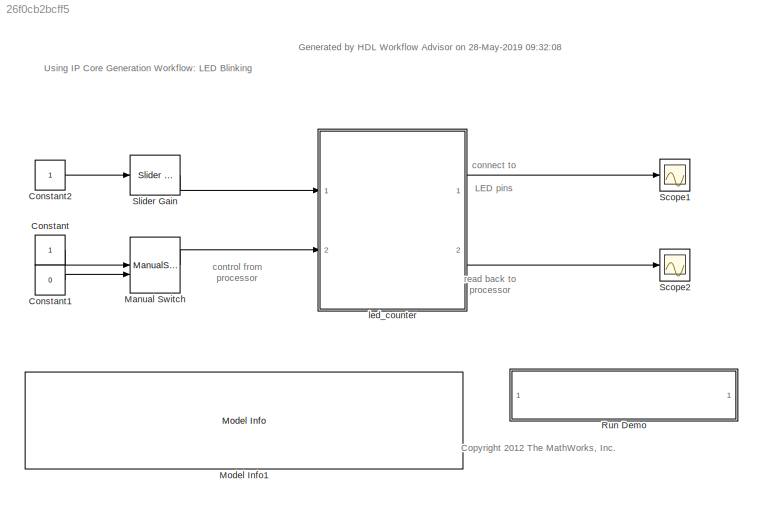
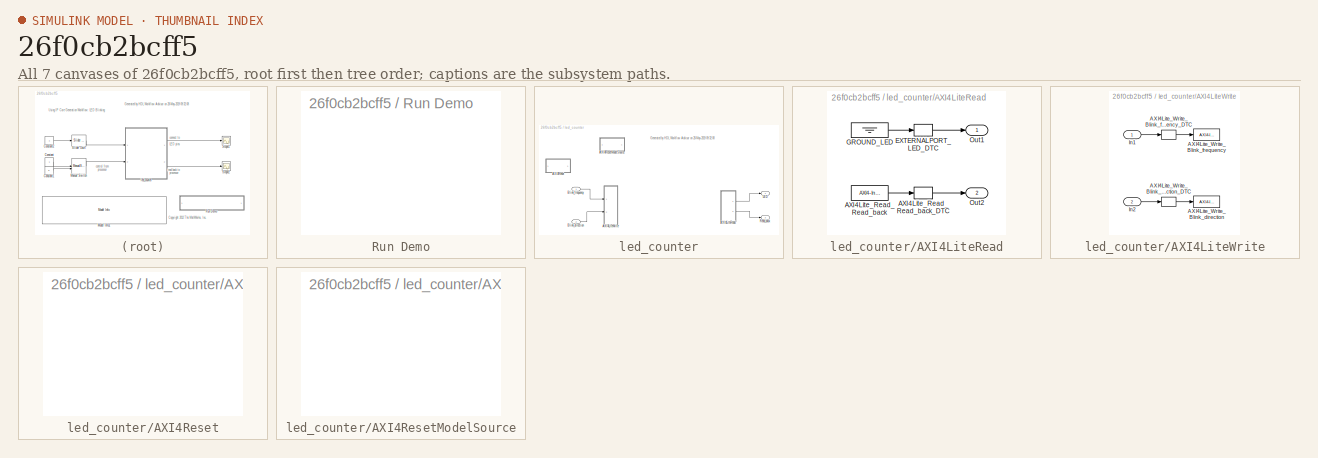
[diagram: thumbnail index - all 7 canvases of the model, root first then tree order]
MODEL slx_26f0cb2bcff5
KIND model
CONFIG AbsTol = auto
CONFIG EnableMultiTasking = off
CONFIG FixedStep = auto
CONFIG InitFcn = Ts = 1e-3;
CONFIG MaxStep = auto
CONFIG MinStep = auto
CONFIG RelTol = 1e-3
CONFIG SampleTimeConstraint = Unconstrained
CONFIG Solver = VariableStepAuto
CONFIG SolverName = VariableStepAuto
CONFIG StartTime = 0.0
CONFIG StopTime = 10.0
BLOCK [Constant] Constant
  OutDataTypeStr = boolean
  SampleTime = Ts
BLOCK [Constant] Constant1
  OutDataTypeStr = boolean
  SampleTime = Ts
  Value = 0
BLOCK [Constant] Constant2
  OutDataTypeStr = fixdt(0, 4, 0)
  SampleTime = Ts
BLOCK [ManualSwitch] Manual Switch
BLOCK [Reference] Model Info1  REF=simulink/Model-Wide
Utilities/Model Info
  Ports = []
  SourceBlock = simulink/Model-Wide\nUtilities/Model Info
  SourceProductBaseCode = SL
  SourceProductName = Simulink
  SourceType = CMBlock
BLOCK [SubSystem] Run Demo
  OpenFcn = hdladvisor([bdroot, '/led_counter'])
  Ports = []
  RequestExecContextInheritance = off
BLOCK [Scope] Scope1
  Floating = off
  NumInputPorts = 1
  Ports = [1]
  ScopeSpecificationString = C++SS(StrPVP('Location','[612, 509, 934, 748]'),StrPVP('Open','off'),MxPVP('AxesTitles',53,'struct(''axes1'',''%<SignalLabel>'')'),MxPVP('ScopeGraphics',56,'struct(''FigureColor'',''[0.5 0.5 0.5]'',''AxesColor'',''[0 0 0]'',''AxesTickColor'',''[1 1 1]'',''LineColors'',''[1 1 0;1 0 1;0 1 1;1 0 0;0 1 0;0 0 1]'',''LineStyles'',''-|-|-|-|-|-'',''LineWidths'',''[0.5 0.5 0.5 0.5 0.5 0.5]'',''MarkerStyle...<+272ch>
BLOCK [Scope] Scope2
  Floating = off
  NumInputPorts = 1
  Ports = [1]
  ScopeSpecificationString = C++SS(StrPVP('Location','[188, 390, 512, 629]'),StrPVP('Open','off'),MxPVP('AxesTitles',53,'struct(''axes1'',''%<SignalLabel>'')'),MxPVP('ScopeGraphics',56,'struct(''FigureColor'',''[0.5 0.5 0.5]'',''AxesColor'',''[0 0 0]'',''AxesTickColor'',''[1 1 1]'',''LineColors'',''[1 1 0;1 0 1;0 1 1;1 0 0;0 1 0;0 0 1]'',''LineStyles'',''-|-|-|-|-|-'',''LineWidths'',''[0.5 0.5 0.5 0.5 0.5 0.5]'',''MarkerStyle...<+240ch>
BLOCK [Reference] Slider Gain  REF=simulink/Math
Operations/Slider
Gain
  Ports = [1, 1]
  SourceBlock = simulink/Math\nOperations/Slider\nGain
  SourceProductBaseCode = SL
  SourceProductName = Simulink
  SourceType = Slider Gain
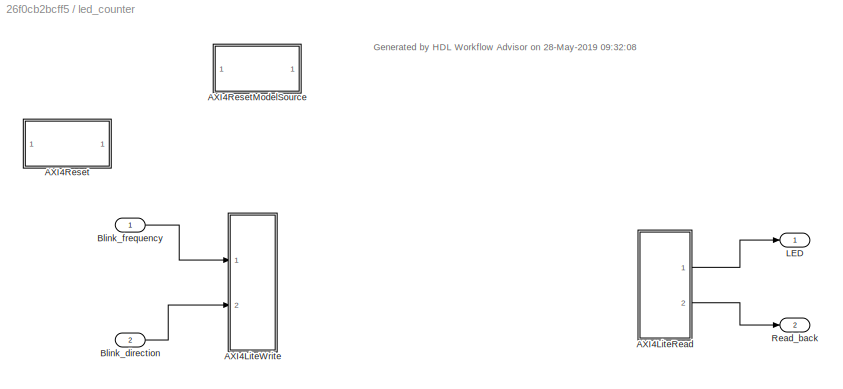
BLOCK [SubSystem] led_counter
  Ports = [2, 2]
  RequestExecContextInheritance = off
  TreatAsAtomicUnit = on
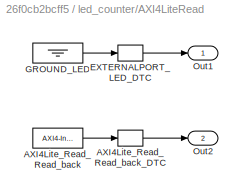
BLOCK [SubSystem] led_counter/AXI4LiteRead
  Ports = [0, 2]
  Priority = 10
  RequestExecContextInheritance = off
BLOCK [Reference] led_counter/AXI4LiteRead/AXI4Lite_Read_Read_back  REF=axiinterfacelib/AXI4-Interface Read
  Ports = [0, 1]
  Priority = 3
  SourceBlock = axiinterfacelib/AXI4-Interface Read
  SourceProductBaseCode = ECZYNQ7000
  SourceProductName = Embedded Coder Support Package for Xilinx Zynq Platform
  SourceType = AXI4-Interface Read
BLOCK [DataTypeConversion] led_counter/AXI4LiteRead/AXI4Lite_Read_Read_back_DTC
  ConvertRealWorld = Stored Integer (SI)
  OutDataTypeStr = fixdt('uint8')
  RndMeth = Floor
  SaturateOnIntegerOverflow = off
BLOCK [DataTypeConversion] led_counter/AXI4LiteRead/EXTERNALPORT_LED_DTC
  OutDataTypeStr = fixdt('uint8')
  RndMeth = Floor
  SaturateOnIntegerOverflow = off
BLOCK [Ground] led_counter/AXI4LiteRead/GROUND_LED
BLOCK [Outport] led_counter/AXI4LiteRead/Out1
  IconDisplay = Port number
BLOCK [Outport] led_counter/AXI4LiteRead/Out2
  IconDisplay = Port number
  Port = 2
BLOCK [SubSystem] led_counter/AXI4LiteWrite
  Ports = [2]
  Priority = 1
  RequestExecContextInheritance = off
BLOCK [Reference] led_counter/AXI4LiteWrite/AXI4Lite_Write_Blink_direction  REF=axiinterfacelib/AXI4-Interface Write
  Ports = [1]
  Priority = 2
  SourceBlock = axiinterfacelib/AXI4-Interface Write
  SourceProductBaseCode = ECZYNQ7000
  SourceProductName = Embedded Coder Support Package for Xilinx Zynq Platform
  SourceType = AXI4-Interface Write
BLOCK [DataTypeConversion] led_counter/AXI4LiteWrite/AXI4Lite_Write_Blink_direction_DTC
  ConvertRealWorld = Stored Integer (SI)
  OutDataTypeStr = uint32
  RndMeth = Floor
  SaturateOnIntegerOverflow = off
BLOCK [Reference] led_counter/AXI4LiteWrite/AXI4Lite_Write_Blink_frequency  REF=axiinterfacelib/AXI4-Interface Write
  Ports = [1]
  Priority = 1
  SourceBlock = axiinterfacelib/AXI4-Interface Write
  SourceProductBaseCode = ECZYNQ7000
  SourceProductName = Embedded Coder Support Package for Xilinx Zynq Platform
  SourceType = AXI4-Interface Write
BLOCK [DataTypeConversion] led_counter/AXI4LiteWrite/AXI4Lite_Write_Blink_frequency_DTC
  ConvertRealWorld = Stored Integer (SI)
  OutDataTypeStr = uint32
  RndMeth = Floor
  SaturateOnIntegerOverflow = off
BLOCK [Inport] led_counter/AXI4LiteWrite/In1
  IconDisplay = Port number
BLOCK [Inport] led_counter/AXI4LiteWrite/In2
  IconDisplay = Port number
  Port = 2
BLOCK [SubSystem] led_counter/AXI4Reset
  CopyFcn = cccopyfcn(gcb)
  OpenFcn = ccopenfcn('System Start Function')
  Ports = []
  RequestExecContextInheritance = off
BLOCK [SubSystem] led_counter/AXI4ResetModelSource
  CopyFcn = cccopyfcn(gcb)
  OpenFcn = ccopenfcn('Model Source')
  Ports = []
  RequestExecContextInheritance = off
BLOCK [Inport] led_counter/Blink_direction
  IconDisplay = Port number
  OutDataTypeStr = boolean
  Port = 2
BLOCK [Inport] led_counter/Blink_frequency
  IconDisplay = Port number
  OutDataTypeStr = fixdt(0, 4, 0)
BLOCK [Outport] led_counter/LED
  IconDisplay = Port number
BLOCK [Outport] led_counter/Read_back
  IconDisplay = Port number
  Port = 2
ANNOTATION (root): <copyright redacted>
ANNOTATION (root): Generated by HDL Workflow Advisor on 28-May-2019 09:32:08
ANNOTATION (root): Using IP Core Generation Workflow: LED Blinking
ANNOTATION (root): connect to LED pins
ANNOTATION (root): control from processor
ANNOTATION (root): read back to processor
ANNOTATION led_counter: Generated by HDL Workflow Advisor on 28-May-2019 09:32:08
LINE Constant1:1 -> Manual Switch:2
LINE Constant2:1 -> Slider Gain:1
LINE Constant:1 -> Manual Switch:1
LINE Manual Switch:1 -> led_counter:2
LINE Slider Gain:1 -> led_counter:1
LINE led_counter/AXI4LiteRead/AXI4Lite_Read_Read_back:1 -> led_counter/AXI4LiteRead/AXI4Lite_Read_Read_back_DTC:1
LINE led_counter/AXI4LiteRead/AXI4Lite_Read_Read_back_DTC:1 -> led_counter/AXI4LiteRead/Out2:1
LINE led_counter/AXI4LiteRead/EXTERNALPORT_LED_DTC:1 -> led_counter/AXI4LiteRead/Out1:1
LINE led_counter/AXI4LiteRead/GROUND_LED:1 -> led_counter/AXI4LiteRead/EXTERNALPORT_LED_DTC:1
LINE led_counter/AXI4LiteRead:1 -> led_counter/LED:1
LINE led_counter/AXI4LiteRead:2 -> led_counter/Read_back:1
LINE led_counter/AXI4LiteWrite/AXI4Lite_Write_Blink_direction_DTC:1 -> led_counter/AXI4LiteWrite/AXI4Lite_Write_Blink_direction:1
LINE led_counter/AXI4LiteWrite/AXI4Lite_Write_Blink_frequency_DTC:1 -> led_counter/AXI4LiteWrite/AXI4Lite_Write_Blink_frequency:1
LINE led_counter/AXI4LiteWrite/In1:1 -> led_counter/AXI4LiteWrite/AXI4Lite_Write_Blink_frequency_DTC:1
LINE led_counter/AXI4LiteWrite/In2:1 -> led_counter/AXI4LiteWrite/AXI4Lite_Write_Blink_direction_DTC:1
LINE led_counter/Blink_direction:1 -> led_counter/AXI4LiteWrite:2
LINE led_counter/Blink_frequency:1 -> led_counter/AXI4LiteWrite:1
LINE led_counter:1 -> Scope1:1
LINE led_counter:2 -> Scope2:1
